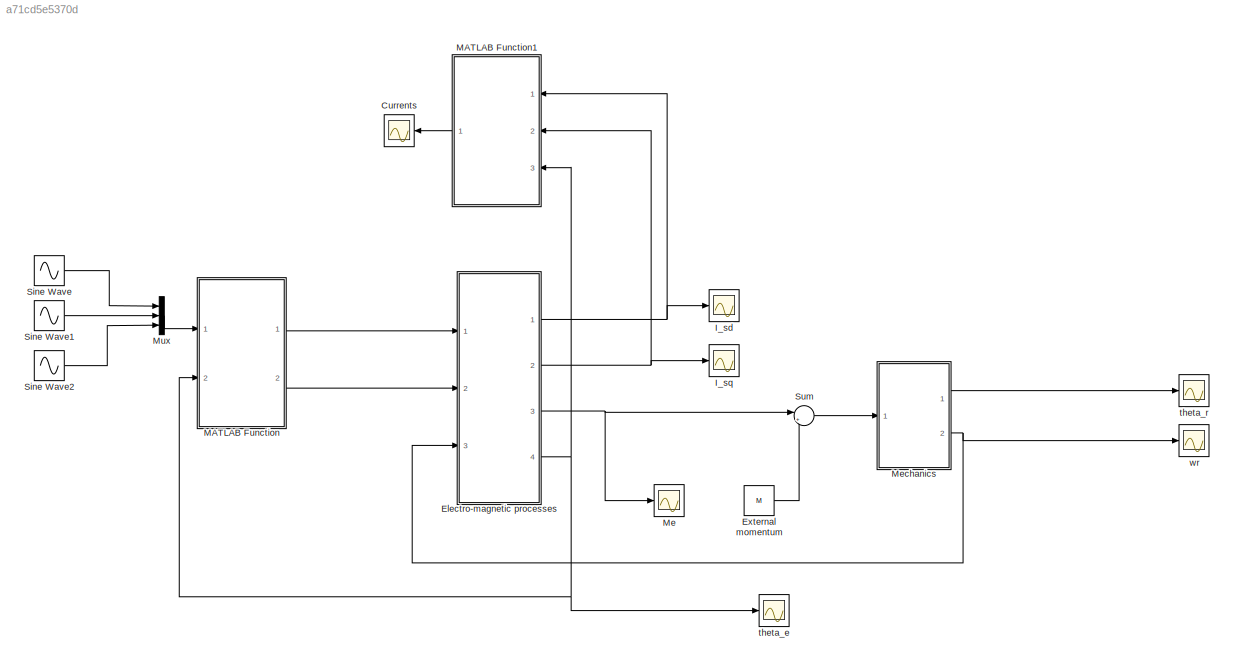
MODEL slx_a71cd5e5370d
KIND model
CONFIG AbsTol = auto
CONFIG EnableMultiTasking = off
CONFIG FixedStep = auto
CONFIG MaxStep = auto
CONFIG MinStep = auto
CONFIG RelTol = 1e-3
CONFIG SampleTimeConstraint = Unconstrained
CONFIG Solver = VariableStepAuto
CONFIG SolverName = VariableStepAuto
CONFIG StartTime = 0.0
CONFIG StopTime = 100
BLOCK [Scope] Currents
  NumInputPorts = 1
  Ports = [1]
  ScopeSpecificationString = Simulink.scopes.TimeScopeBlockCfg('CurrentConfiguration', extmgr.ConfigurationSet(extmgr.Configuration('Core','General UI',true),extmgr.Configuration('Core','Source UI',true),extmgr.Configuration('Sources','WiredSimulink',true,'DataLoggingVariableName','ScopeData6'),extmgr.Configuration('Visuals','Time Domain',true,'SerializedDisplays',{struct('MinYLimReal','-25.89741','MaxYLimReal','25.91324','YL...<+1425ch>
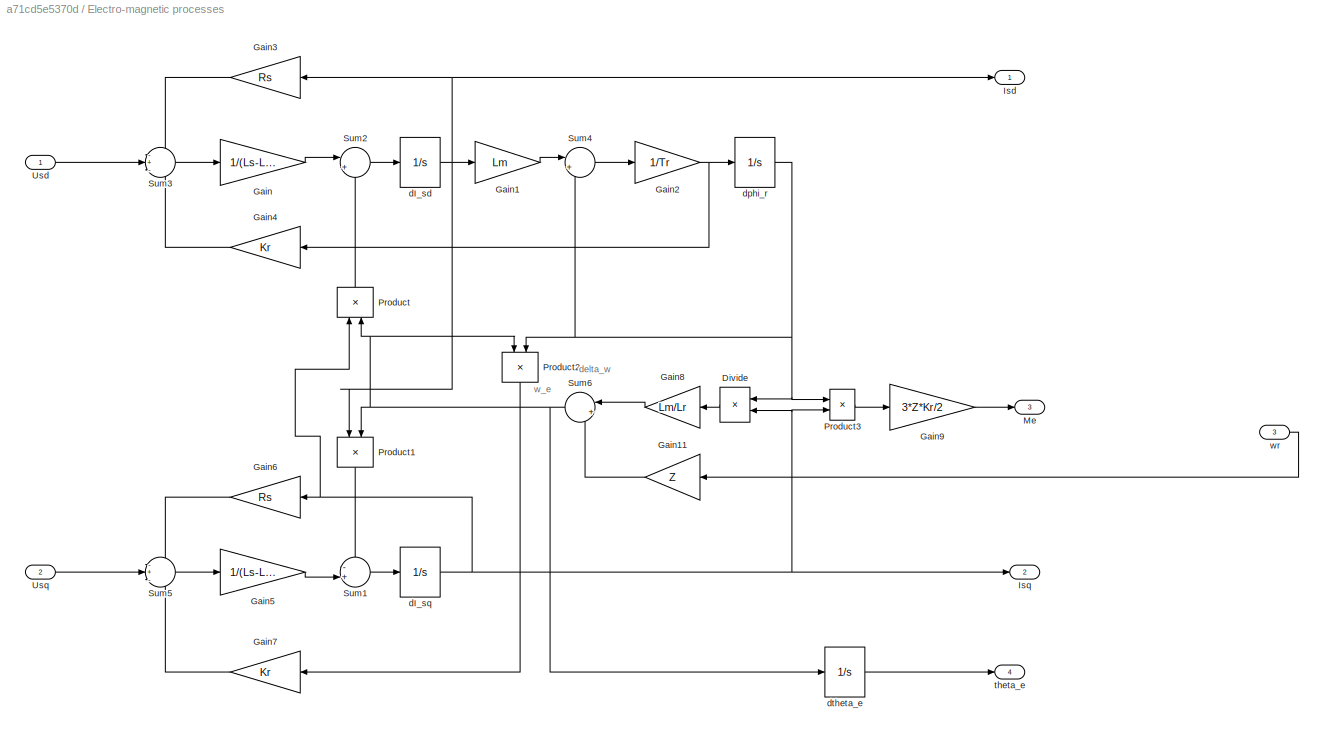
BLOCK [SubSystem] Electro-magnetic processes
  Ports = [3, 4]
  RequestExecContextInheritance = off
  Variant = off
BLOCK [Product] Electro-magnetic processes/Divide
  InputSameDT = off
  Inputs = */
  OutDataTypeStr = Inherit: Inherit via internal rule
  Ports = [2, 1]
  RndMeth = Floor
  SaturateOnIntegerOverflow = off
BLOCK [Gain] Electro-magnetic processes/Gain
  Gain = 1/(Ls-Lm*Kr)
  OutDataTypeStr = Inherit: Inherit via internal rule
  ParamDataTypeStr = Inherit: Inherit via internal rule
  SaturateOnIntegerOverflow = off
BLOCK [Gain] Electro-magnetic processes/Gain1
  Gain = Lm
  OutDataTypeStr = Inherit: Inherit via internal rule
  ParamDataTypeStr = Inherit: Inherit via internal rule
  SaturateOnIntegerOverflow = off
BLOCK [Gain] Electro-magnetic processes/Gain11
  Gain = Z
  OutDataTypeStr = Inherit: Inherit via internal rule
  ParamDataTypeStr = Inherit: Inherit via internal rule
  SaturateOnIntegerOverflow = off
BLOCK [Gain] Electro-magnetic processes/Gain2
  Gain = 1/Tr
  OutDataTypeStr = Inherit: Inherit via internal rule
  ParamDataTypeStr = Inherit: Inherit via internal rule
  SaturateOnIntegerOverflow = off
BLOCK [Gain] Electro-magnetic processes/Gain3
  Gain = Rs
  OutDataTypeStr = Inherit: Inherit via internal rule
  ParamDataTypeStr = Inherit: Inherit via internal rule
  SaturateOnIntegerOverflow = off
BLOCK [Gain] Electro-magnetic processes/Gain4
  Gain = Kr
  OutDataTypeStr = Inherit: Inherit via internal rule
  ParamDataTypeStr = Inherit: Inherit via internal rule
  SaturateOnIntegerOverflow = off
BLOCK [Gain] Electro-magnetic processes/Gain5
  Gain = 1/(Ls-Lm*Kr)
  OutDataTypeStr = Inherit: Inherit via internal rule
  ParamDataTypeStr = Inherit: Inherit via internal rule
  SaturateOnIntegerOverflow = off
BLOCK [Gain] Electro-magnetic processes/Gain6
  Gain = Rs
  OutDataTypeStr = Inherit: Inherit via internal rule
  ParamDataTypeStr = Inherit: Inherit via internal rule
  SaturateOnIntegerOverflow = off
BLOCK [Gain] Electro-magnetic processes/Gain7
  Gain = Kr
  OutDataTypeStr = Inherit: Inherit via internal rule
  ParamDataTypeStr = Inherit: Inherit via internal rule
  SaturateOnIntegerOverflow = off
BLOCK [Gain] Electro-magnetic processes/Gain8
  Gain = Lm/Lr
  OutDataTypeStr = Inherit: Inherit via internal rule
  ParamDataTypeStr = Inherit: Inherit via internal rule
  SaturateOnIntegerOverflow = off
BLOCK [Gain] Electro-magnetic processes/Gain9
  Gain = 3*Z*Kr/2
  OutDataTypeStr = Inherit: Inherit via internal rule
  ParamDataTypeStr = Inherit: Inherit via internal rule
  SaturateOnIntegerOverflow = off
BLOCK [Outport] Electro-magnetic processes/Isd
  IconDisplay = Port number
BLOCK [Outport] Electro-magnetic processes/Isq
  IconDisplay = Port number
  Port = 2
BLOCK [Outport] Electro-magnetic processes/Me
  IconDisplay = Port number
  Port = 3
BLOCK [Product] Electro-magnetic processes/Product
  InputSameDT = off
  OutDataTypeStr = Inherit: Inherit via internal rule
  Ports = [2, 1]
  RndMeth = Floor
  SaturateOnIntegerOverflow = off
BLOCK [Product] Electro-magnetic processes/Product1
  InputSameDT = off
  OutDataTypeStr = Inherit: Inherit via internal rule
  Ports = [2, 1]
  RndMeth = Floor
  SaturateOnIntegerOverflow = off
BLOCK [Product] Electro-magnetic processes/Product2
  InputSameDT = off
  OutDataTypeStr = Inherit: Inherit via internal rule
  Ports = [2, 1]
  RndMeth = Floor
  SaturateOnIntegerOverflow = off
BLOCK [Product] Electro-magnetic processes/Product3
  InputSameDT = off
  OutDataTypeStr = Inherit: Inherit via internal rule
  Ports = [2, 1]
  RndMeth = Floor
  SaturateOnIntegerOverflow = off
BLOCK [Sum] Electro-magnetic processes/Sum1
  IconShape = round
  InputSameDT = off
  Inputs = -+|
  OutDataTypeStr = Inherit: Inherit via internal rule
  Ports = [2, 1]
  SaturateOnIntegerOverflow = off
BLOCK [Sum] Electro-magnetic processes/Sum2
  IconShape = round
  InputSameDT = off
  Inputs = |++
  OutDataTypeStr = Inherit: Inherit via internal rule
  Ports = [2, 1]
  SaturateOnIntegerOverflow = off
BLOCK [Sum] Electro-magnetic processes/Sum3
  IconShape = round
  InputSameDT = off
  Inputs = -+-
  OutDataTypeStr = Inherit: Inherit via internal rule
  Ports = [3, 1]
  SaturateOnIntegerOverflow = off
BLOCK [Sum] Electro-magnetic processes/Sum4
  IconShape = round
  InputSameDT = off
  Inputs = |+-
  OutDataTypeStr = Inherit: Inherit via internal rule
  Ports = [2, 1]
  SaturateOnIntegerOverflow = off
BLOCK [Sum] Electro-magnetic processes/Sum5
  IconShape = round
  InputSameDT = off
  Inputs = -+-
  OutDataTypeStr = Inherit: Inherit via internal rule
  Ports = [3, 1]
  SaturateOnIntegerOverflow = off
BLOCK [Sum] Electro-magnetic processes/Sum6
  IconShape = round
  InputSameDT = off
  Inputs = |++
  OutDataTypeStr = Inherit: Inherit via internal rule
  Ports = [2, 1]
  SaturateOnIntegerOverflow = off
BLOCK [Inport] Electro-magnetic processes/Usd
  IconDisplay = Port number
BLOCK [Inport] Electro-magnetic processes/Usq
  IconDisplay = Port number
  Port = 2
BLOCK [Integrator] Electro-magnetic processes/dI_sd
  InitialCondition = 0.01
  Ports = [1, 1]
BLOCK [Integrator] Electro-magnetic processes/dI_sq
  InitialCondition = 0.01
  Ports = [1, 1]
BLOCK [Integrator] Electro-magnetic processes/dphi_r
  InitialCondition = 0.01
  Ports = [1, 1]
BLOCK [Integrator] Electro-magnetic processes/dtheta_e
  InitialCondition = 0.01
  Ports = [1, 1]
BLOCK [Outport] Electro-magnetic processes/theta_e
  IconDisplay = Port number
  Port = 4
BLOCK [Inport] Electro-magnetic processes/wr 
  IconDisplay = Port number
  Port = 3
BLOCK [Constant] External momentum
  Value = M
BLOCK [Scope] I_sd
  NumInputPorts = 1
  Ports = [1]
  ScopeSpecificationString = Simulink.scopes.TimeScopeBlockCfg('CurrentConfiguration', extmgr.ConfigurationSet(extmgr.Configuration('Core','General UI',true),extmgr.Configuration('Core','Source UI',true),extmgr.Configuration('Sources','WiredSimulink',true),extmgr.Configuration('Visuals','Time Domain',true),extmgr.Configuration('Tools','Plot Navigation',true),extmgr.Configuration('Tools','Measurements',true)),'Version','2017b'...<+1ch>
BLOCK [Scope] I_sq
  NumInputPorts = 1
  Ports = [1]
  ScopeSpecificationString = Simulink.scopes.TimeScopeBlockCfg('CurrentConfiguration', extmgr.ConfigurationSet(extmgr.Configuration('Core','General UI',true),extmgr.Configuration('Core','Source UI',true),extmgr.Configuration('Sources','WiredSimulink',true,'DataLoggingVariableName','ScopeData1'),extmgr.Configuration('Visuals','Time Domain',true),extmgr.Configuration('Tools','Plot Navigation',true),extmgr.Configuration('Tools',...<+40ch>
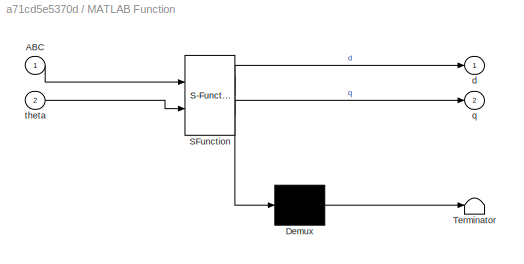
BLOCK [SubSystem] MATLAB Function
  ErrorFcn = Stateflow.Translate.translate
  PermitHierarchicalResolution = ExplicitOnly
  Ports = [2, 2]
  RequestExecContextInheritance = off
  SFBlockType = MATLAB Function
  TreatAsAtomicUnit = on
  Variant = off
BLOCK [Demux] MATLAB Function/ Demux 
  Outputs = 1
  Ports = [1, 1]
BLOCK [S-Function] MATLAB Function/ SFunction 
  EnableBusSupport = on
  FunctionName = sf_sfun
  PortCounts = [2 3]
  Ports = [2, 3]
  SFcnIsStateOwnerBlock = off
  SFunctionDeploymentMode = off
  Tag = Stateflow S-Function asynchronous_motor_3phase_squirell_cage 2
BLOCK [Terminator] MATLAB Function/ Terminator 
BLOCK [Inport] MATLAB Function/ABC
  IconDisplay = Port number
BLOCK [Outport] MATLAB Function/d
  IconDisplay = Port number
BLOCK [Outport] MATLAB Function/q
  IconDisplay = Port number
  Port = 2
BLOCK [Inport] MATLAB Function/theta
  IconDisplay = Port number
  Port = 2
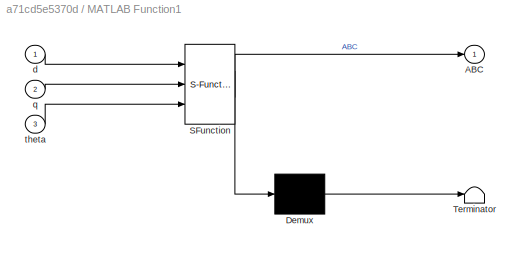
BLOCK [SubSystem] MATLAB Function1
  ErrorFcn = Stateflow.Translate.translate
  PermitHierarchicalResolution = ExplicitOnly
  Ports = [3, 1]
  RequestExecContextInheritance = off
  SFBlockType = MATLAB Function
  TreatAsAtomicUnit = on
  Variant = off
BLOCK [Demux] MATLAB Function1/ Demux 
  Outputs = 1
  Ports = [1, 1]
BLOCK [S-Function] MATLAB Function1/ SFunction 
  EnableBusSupport = on
  FunctionName = sf_sfun
  PortCounts = [3 2]
  Ports = [3, 2]
  SFcnIsStateOwnerBlock = off
  SFunctionDeploymentMode = off
  Tag = Stateflow S-Function asynchronous_motor_3phase_squirell_cage 1
BLOCK [Terminator] MATLAB Function1/ Terminator 
BLOCK [Outport] MATLAB Function1/ABC
  IconDisplay = Port number
BLOCK [Inport] MATLAB Function1/d
  IconDisplay = Port number
BLOCK [Inport] MATLAB Function1/q
  IconDisplay = Port number
  Port = 2
BLOCK [Inport] MATLAB Function1/theta
  IconDisplay = Port number
  Port = 3
BLOCK [Scope] Me
  NumInputPorts = 1
  Ports = [1]
  ScopeSpecificationString = Simulink.scopes.TimeScopeBlockCfg('CurrentConfiguration', extmgr.ConfigurationSet(extmgr.Configuration('Core','General UI',true),extmgr.Configuration('Core','Source UI',true),extmgr.Configuration('Sources','WiredSimulink',true,'DataLoggingVariableName','ScopeData2'),extmgr.Configuration('Visuals','Time Domain',true,'SerializedDisplays',{struct('MinYLimReal','-7.43049','MaxYLimReal','11.8518','YLab...<+1412ch>
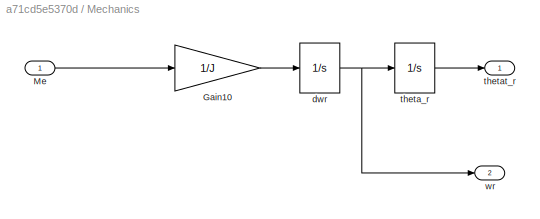
BLOCK [SubSystem] Mechanics
  Ports = [1, 2]
  RequestExecContextInheritance = off
  Variant = off
BLOCK [Gain] Mechanics/Gain10
  Gain = 1/J
  OutDataTypeStr = Inherit: Inherit via internal rule
  ParamDataTypeStr = Inherit: Inherit via internal rule
  SaturateOnIntegerOverflow = off
BLOCK [Inport] Mechanics/Me
  IconDisplay = Port number
BLOCK [Integrator] Mechanics/dwr
  InitialCondition = 0.01
  Ports = [1, 1]
BLOCK [Integrator] Mechanics/theta_r
  InitialCondition = 0.01
  Ports = [1, 1]
BLOCK [Outport] Mechanics/thetat_r
  IconDisplay = Port number
BLOCK [Outport] Mechanics/wr
  IconDisplay = Port number
  Port = 2
BLOCK [Mux] Mux
  DisplayOption = bar
  Inputs = 3
  Ports = [3, 1]
BLOCK [Sin] Sine Wave
  Amplitude = 220
  Frequency = 50
  Ports = [0, 1]
  SampleTime = 0
BLOCK [Sin] Sine Wave1
  Amplitude = 220
  Frequency = 50
  Phase = -2*pi/3
  Ports = [0, 1]
  SampleTime = 0
BLOCK [Sin] Sine Wave2
  Amplitude = 220
  Frequency = 50
  Phase = 2*pi/3
  Ports = [0, 1]
  SampleTime = 0
BLOCK [Sum] Sum
  IconShape = round
  InputSameDT = off
  Inputs = |++
  OutDataTypeStr = Inherit: Inherit via internal rule
  Ports = [2, 1]
  SaturateOnIntegerOverflow = off
BLOCK [Scope] theta_e
  NumInputPorts = 1
  Ports = [1]
  ScopeSpecificationString = Simulink.scopes.TimeScopeBlockCfg('CurrentConfiguration', extmgr.ConfigurationSet(extmgr.Configuration('Core','General UI',true),extmgr.Configuration('Core','Source UI',true),extmgr.Configuration('Sources','WiredSimulink',true,'DataLoggingVariableName','ScopeData4'),extmgr.Configuration('Visuals','Time Domain',true),extmgr.Configuration('Tools','Plot Navigation',true),extmgr.Configuration('Tools',...<+40ch>
BLOCK [Scope] theta_r
  NumInputPorts = 1
  Ports = [1]
  ScopeSpecificationString = Simulink.scopes.TimeScopeBlockCfg('CurrentConfiguration', extmgr.ConfigurationSet(extmgr.Configuration('Core','General UI',true),extmgr.Configuration('Core','Source UI',true),extmgr.Configuration('Sources','WiredSimulink',true,'DataLoggingVariableName','ScopeData5'),extmgr.Configuration('Visuals','Time Domain',true,'SerializedDisplays',{struct('MinYLimReal','-17.60988','MaxYLimReal','158.57459','Y...<+1380ch>
BLOCK [Scope] wr
  NumInputPorts = 1
  Ports = [1]
  ScopeSpecificationString = Simulink.scopes.TimeScopeBlockCfg('CurrentConfiguration', extmgr.ConfigurationSet(extmgr.Configuration('Core','General UI',true),extmgr.Configuration('Core','Source UI',true),extmgr.Configuration('Sources','WiredSimulink',true,'DataLoggingVariableName','ScopeData3'),extmgr.Configuration('Visuals','Time Domain',true,'SerializedDisplays',{struct('MinYLimReal','-5.39767','MaxYLimReal','47.8687','YLab...<+1422ch>
ANNOTATION Electro-magnetic processes: delta_w
ANNOTATION Electro-magnetic processes: w_e
LINE Electro-magnetic processes/Divide:1 -> Electro-magnetic processes/Gain8:1
LINE Electro-magnetic processes/Gain11:1 -> Electro-magnetic processes/Sum6:2
LINE Electro-magnetic processes/Gain1:1 -> Electro-magnetic processes/Sum4:1
NET Electro-magnetic processes/Gain2:1 -> Electro-magnetic processes/Gain4:1, Electro-magnetic processes/dphi_r:1
LINE Electro-magnetic processes/Gain3:1 -> Electro-magnetic processes/Sum3:1
LINE Electro-magnetic processes/Gain4:1 -> Electro-magnetic processes/Sum3:3
LINE Electro-magnetic processes/Gain5:1 -> Electro-magnetic processes/Sum1:2
LINE Electro-magnetic processes/Gain6:1 -> Electro-magnetic processes/Sum5:1
LINE Electro-magnetic processes/Gain7:1 -> Electro-magnetic processes/Sum5:3
LINE Electro-magnetic processes/Gain8:1 -> Electro-magnetic processes/Sum6:1
LINE Electro-magnetic processes/Gain9:1 -> Electro-magnetic processes/Me:1
LINE Electro-magnetic processes/Gain:1 -> Electro-magnetic processes/Sum2:1
LINE Electro-magnetic processes/Product1:1 -> Electro-magnetic processes/Sum1:1
LINE Electro-magnetic processes/Product2:1 -> Electro-magnetic processes/Gain7:1
LINE Electro-magnetic processes/Product3:1 -> Electro-magnetic processes/Gain9:1
LINE Electro-magnetic processes/Product:1 -> Electro-magnetic processes/Sum2:2
LINE Electro-magnetic processes/Sum1:1 -> Electro-magnetic processes/dI_sq:1
LINE Electro-magnetic processes/Sum2:1 -> Electro-magnetic processes/dI_sd:1
LINE Electro-magnetic processes/Sum3:1 -> Electro-magnetic processes/Gain:1
LINE Electro-magnetic processes/Sum4:1 -> Electro-magnetic processes/Gain2:1
LINE Electro-magnetic processes/Sum5:1 -> Electro-magnetic processes/Gain5:1
NET Electro-magnetic processes/Sum6:1 -> Electro-magnetic processes/Product1:2, Electro-magnetic processes/Product2:1, Electro-magnetic processes/Product:2, Electro-magnetic processes/dtheta_e:1
LINE Electro-magnetic processes/Usd:1 -> Electro-magnetic processes/Sum3:2
LINE Electro-magnetic processes/Usq:1 -> Electro-magnetic processes/Sum5:2
NET Electro-magnetic processes/dI_sd:1 -> Electro-magnetic processes/Gain1:1, Electro-magnetic processes/Gain3:1, Electro-magnetic processes/Isd:1, Electro-magnetic processes/Product1:1
NET Electro-magnetic processes/dI_sq:1 -> Electro-magnetic processes/Divide:2, Electro-magnetic processes/Gain6:1, Electro-magnetic processes/Isq:1, Electro-magnetic processes/Product3:2, Electro-magnetic processes/Product:1
NET Electro-magnetic processes/dphi_r:1 -> Electro-magnetic processes/Divide:1, Electro-magnetic processes/Product2:2, Electro-magnetic processes/Product3:1, Electro-magnetic processes/Sum4:2
LINE Electro-magnetic processes/dtheta_e:1 -> Electro-magnetic processes/theta_e:1
LINE Electro-magnetic processes/wr :1 -> Electro-magnetic processes/Gain11:1
NET Electro-magnetic processes:1 -> I_sd:1, MATLAB Function1:1
NET Electro-magnetic processes:2 -> I_sq:1, MATLAB Function1:2
NET Electro-magnetic processes:3 -> Me:1, Sum:1
NET Electro-magnetic processes:4 -> MATLAB Function1:3, MATLAB Function:2, theta_e:1
LINE External momentum:1 -> Sum:2
LINE MATLAB Function1:1 -> Currents:1
LINE MATLAB Function:1 -> Electro-magnetic processes:1
LINE MATLAB Function:2 -> Electro-magnetic processes:2
LINE Mechanics/Gain10:1 -> Mechanics/dwr:1
LINE Mechanics/Me:1 -> Mechanics/Gain10:1
NET Mechanics/dwr:1 -> Mechanics/theta_r:1, Mechanics/wr:1
LINE Mechanics/theta_r:1 -> Mechanics/thetat_r:1
LINE Mechanics:1 -> theta_r:1
NET Mechanics:2 -> Electro-magnetic processes:3, wr:1
LINE Mux:1 -> MATLAB Function:1
LINE Sine Wave1:1 -> Mux:2
LINE Sine Wave2:1 -> Mux:3
LINE Sine Wave:1 -> Mux:1
LINE Sum:1 -> Mechanics:1
note: NET lines group one-source signal fan-out (src -> all destinations, sorted); 1:1 wires keep LINE
CHART MATLAB Function1 states=1 transitions=1
  STATE_LABEL 'eML_blk_kernel()'
  STATE_LABEL 'SCRIPT:\nfunction ABC  = dq_ABC(d, q, theta)\nA = d*cos(theta)-q*sin(theta);\nB = sqrt(3)/2*(q*cos(theta)+d*sin(theta))-0.5*A;\nC = -sqrt(3)/2*(q*cos(theta)+d*sin(theta))-0.5*A;\n\nABC=[A; B; C];\n\n\n\n'
CHART MATLAB Function states=1 transitions=1
  STATE_LABEL 'eML_blk_kernel()'
  STATE_LABEL 'SCRIPT:\nfunction [d, q] = ABC_dq(ABC, theta)\nA = ABC(1);\nB = ABC(2);\nC = ABC(3);\n\nd = (B-C)/sqrt(3)*sin(theta)+A*cos(theta);\nq = (B-C)/sqrt(3)*cos(theta)-A*sin(theta);\n\n'
